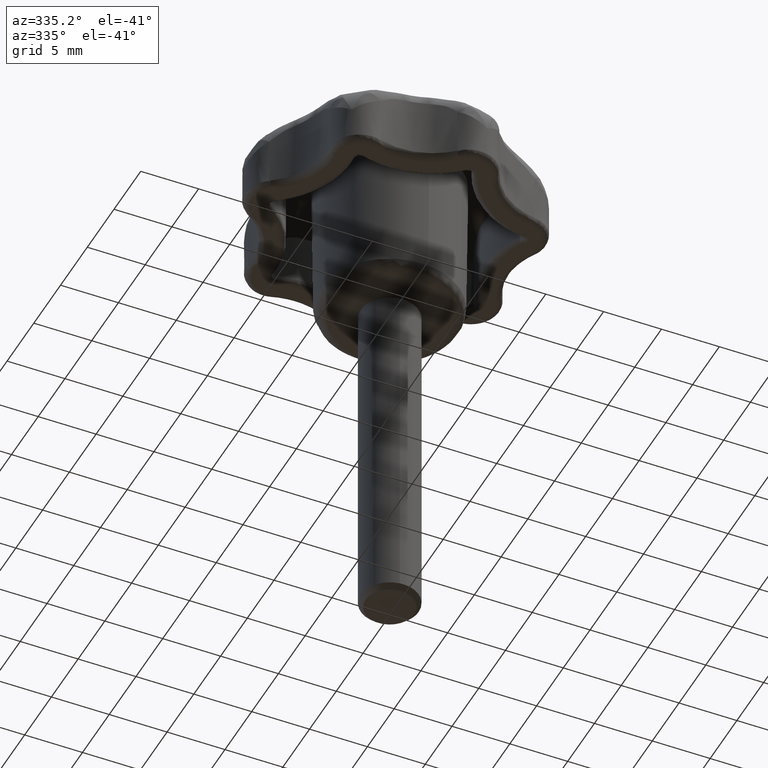
[diagram: clean part render]
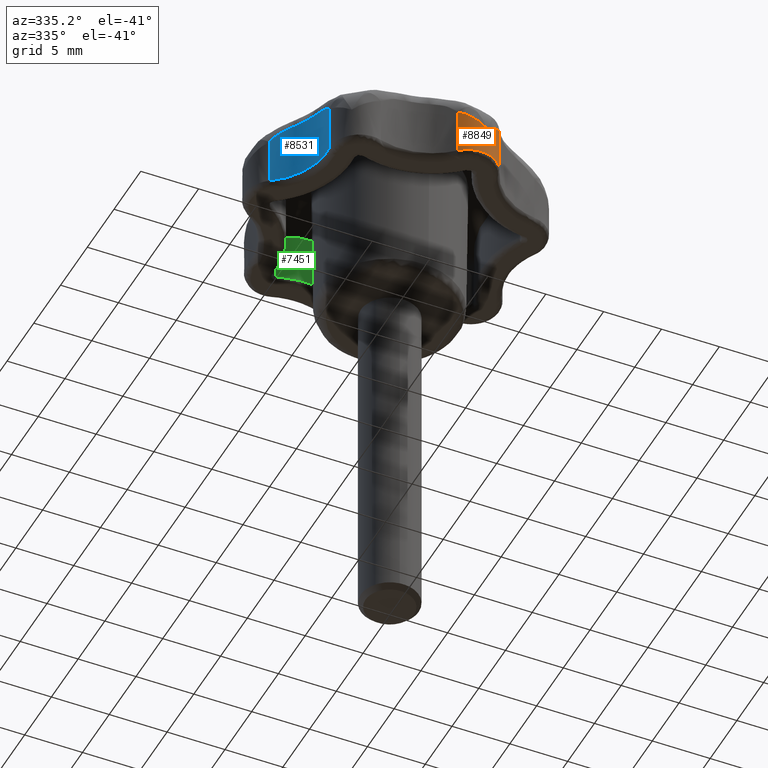
[diagram: same view with three faces highlighted in distinct colors, each labeled with its STEP entity id]
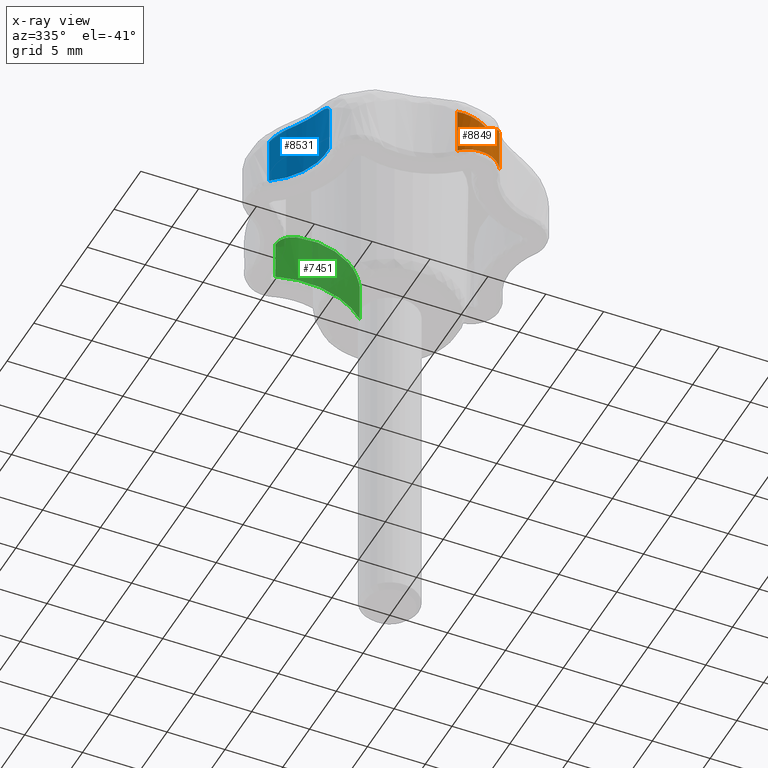
[diagram: x-ray of the same camera — body ghosted, the three highlighted faces saturated]
A machine part, auxiliary view with three faces highlighted in distinct colors.
The next image is the same camera in x-ray (body ghosted, the three faces saturated) — at least one of them is partly hidden behind the body in this view.
Their STEP definitions:

[orange] entity #8849 — the highlighted face is a freeform B-spline surface patch.
#1651=CARTESIAN_POINT('',(4.563284031942840,-10.634380462738219,4.529264595418580));
#1652=VERTEX_POINT('',#1651);
#1750=CARTESIAN_POINT('',(2.781511282431005,-12.186598892089579,3.151512428381570));
#1751=VERTEX_POINT('',#1750);
#1771=CARTESIAN_POINT('',(4.563284031942840,-10.634380462738219,4.529264595418580));
#1772=CARTESIAN_POINT('',(4.487662495242057,-10.834141861445680,4.427469687665122));
#1773=CARTESIAN_POINT('',(4.389238284534717,-11.017943790375920,4.322442562413101));
#1774=CARTESIAN_POINT('',(4.211372162445604,-11.271050720727310,4.158261328847716));
#1775=CARTESIAN_POINT('',(4.146984986091315,-11.351613950743390,4.102422721626397));
#1776=CARTESIAN_POINT('',(4.008043643809743,-11.504898795947531,3.988115386392870));
#1777=CARTESIAN_POINT('',(3.934290066893379,-11.576729229332351,3.930306564796014));
#1778=CARTESIAN_POINT('',(3.778754389860078,-11.710663499669749,3.813183130549426));
#1779=CARTESIAN_POINT('',(3.697390548454497,-11.772392903767731,3.754187098108138));
#1780=CARTESIAN_POINT('',(3.528487160645924,-11.885110083024021,3.635445723277188));
#1781=CARTESIAN_POINT('',(3.440822282983518,-11.936194998966140,3.575610412741043));
#1782=CARTESIAN_POINT('',(3.259401672416639,-12.027603550326351,3.454759368511019));
#1783=CARTESIAN_POINT('',(3.166561096908186,-12.067470620427530,3.394351407173060));
#1784=CARTESIAN_POINT('',(3.024324391976590,-12.118657321448390,3.303503205043001));
#1785=CARTESIAN_POINT('',(2.976414997368678,-12.134280610236280,3.273181078926836));
#1786=CARTESIAN_POINT('',(2.903821417633830,-12.155546019568121,3.227607105706828));
#1787=CARTESIAN_POINT('',(2.879502053502375,-12.162272669500190,3.212400398258992));
#1788=CARTESIAN_POINT('',(2.842840569084235,-12.171817071341280,3.189565933833586));
#1789=CARTESIAN_POINT('',(2.830589954124656,-12.174907530699359,3.181949886368499));
#1790=CARTESIAN_POINT('',(2.806024061818114,-12.180906794816650,3.166715787853680));
#1791=CARTESIAN_POINT('',(2.793621118122193,-12.183834801842950,3.159127716639976));
#1792=CARTESIAN_POINT('',(2.781511282431005,-12.186598892089579,3.151512428381570));
#1793=B_SPLINE_CURVE_WITH_KNOTS('',3,(#1771,#1772,#1773,#1774,#1775,#1776,#1777,#1778,#1779,#1780,#1781,#1782,#1783,#1784,#1785,#1786,#1787,#1788,#1789,#1790,#1791,#1792),.UNSPECIFIED.,.F.,.U.,(4,2,2,2,2,2,2,2,2,2,4),(0.000000049319348,0.250000000000000,0.375000000000001,0.500000000000001,0.625000000000001,0.750000000000001,0.875000000000001,0.937500000000001,0.968750000000001,0.984375000000001,1.0),.UNSPECIFIED.);
#1794=EDGE_CURVE('',#1652,#1751,#1793,.T.);
#5048=CARTESIAN_POINT('',(0.502707521343520,-11.561180944374000,4.529264215869410));
#5049=VERTEX_POINT('',#5048);
#5147=CARTESIAN_POINT('',(2.781511282431005,-12.186598892089579,3.151512428381570));
#5148=CARTESIAN_POINT('',(2.769401406244342,-12.189362792256180,3.159127714912443));
#5149=CARTESIAN_POINT('',(2.756956328154848,-12.192106183303750,3.166715784402129));
#5150=CARTESIAN_POINT('',(2.732220246102599,-12.197359771709349,3.181949879476373));
#5151=CARTESIAN_POINT('',(2.719841925993441,-12.199890705407229,3.189565925227811));
#5152=CARTESIAN_POINT('',(2.682669917071423,-12.207198314781371,3.212400384528243));
#5153=CARTESIAN_POINT('',(2.657840348398665,-12.211689586991520,3.227607088581485));
#5154=CARTESIAN_POINT('',(2.583209093758222,-12.224027282765270,3.273181051676401));
#5155=CARTESIAN_POINT('',(2.533265540545360,-12.230738289723460,3.303503171120864));
#5156=CARTESIAN_POINT('',(2.382905652808730,-12.246334850517460,3.394351353424821));
#5157=CARTESIAN_POINT('',(2.281961533114782,-12.250697874515270,3.454759301797221));
#5158=CARTESIAN_POINT('',(2.078846571306669,-12.247057067655970,3.575610320375380));
#5159=CARTESIAN_POINT('',(1.977698356512245,-12.239067516317730,3.635445616608766));
#5160=CARTESIAN_POINT('',(1.776615555503751,-12.210797290848630,3.754186966587341));
#5161=CARTESIAN_POINT('',(1.676525901815152,-12.190483474552270,3.813182988536426));
#5162=CARTESIAN_POINT('',(1.478281242341466,-12.137297290057040,3.930306397388358));
#5163=CARTESIAN_POINT('',(1.380665526713061,-12.104580796222400,3.988115208959874));
#5164=CARTESIAN_POINT('',(1.188975944639857,-12.026760346693980,4.102422519247340));
#5165=CARTESIAN_POINT('',(1.096010046987085,-11.982111953256389,4.158261115260650));
#5166=CARTESIAN_POINT('',(0.825939241598062,-11.831243753244950,4.322442339974611));
#5167=CARTESIAN_POINT('',(0.657513508086060,-11.708348699172680,4.427469410842620));
#5168=CARTESIAN_POINT('',(0.502707521343520,-11.561180944374000,4.529264215869410));
#5169=B_SPLINE_CURVE_WITH_KNOTS('',3,(#5147,#5148,#5149,#5150,#5151,#5152,#5153,#5154,#5155,#5156,#5157,#5158,#5159,#5160,#5161,#5162,#5163,#5164,#5165,#5166,#5167,#5168),.UNSPECIFIED.,.F.,.U.,(4,2,2,2,2,2,2,2,2,2,4),(0.0,0.015625000000000,0.031250000000000,0.062500000000000,0.125000000000000,0.250000000000000,0.375000000000000,0.500000000000000,0.625000000000000,0.750000000000000,1.0),.UNSPECIFIED.);
#5170=EDGE_CURVE('',#1751,#5049,#5169,.T.);
#6218=CARTESIAN_POINT('',(0.502707521343520,-11.561180944374000,0.499999999999945));
#6219=VERTEX_POINT('',#6218);
#6274=CARTESIAN_POINT('',(4.563284031942840,-10.634380462738219,0.499999999999945));
#6275=VERTEX_POINT('',#6274);
#6289=CARTESIAN_POINT('',(0.502707521343526,-11.561180944373991,0.499999999999945));
#6290=CARTESIAN_POINT('',(1.474407684244280,-12.484936764938311,0.499999999999945));
#6291=CARTESIAN_POINT('',(2.781511522532406,-12.186598737626580,0.499999999999945));
#6292=CARTESIAN_POINT('',(4.088615360820529,-11.888260710314841,0.499999999999945));
#6293=CARTESIAN_POINT('',(4.563284031942840,-10.634380462738219,0.499999999999945));
#6301=(BOUNDED_CURVE()B_SPLINE_CURVE(2,(#6289,#6290,#6291,#6292,#6293),.UNSPECIFIED.,.F.,.U.)B_SPLINE_CURVE_WITH_KNOTS((3,2,3),(0.0,0.500000000000000,1.0),.UNSPECIFIED.)CURVE()GEOMETRIC_REPRESENTATION_ITEM()RATIONAL_B_SPLINE_CURVE((1.0,0.881269650176350,1.0,0.881269650176350,1.0))REPRESENTATION_ITEM(''));
#6302=EDGE_CURVE('',#6219,#6275,#6301,.T.);
#8678=CARTESIAN_POINT('',(4.563284031942840,-10.634380462738219,4.529264595418580));
#8679=CARTESIAN_POINT('',(4.563284031942840,-10.634380462738219,0.499999999999945));
#8680=QUASI_UNIFORM_CURVE('',1,(#8678,#8679),.UNSPECIFIED.,.F.,.U.);
#8681=EDGE_CURVE('',#1652,#6275,#8680,.T.);
#8701=CARTESIAN_POINT('',(0.502707521343520,-11.561180944374000,4.529264215869410));
#8702=CARTESIAN_POINT('',(0.502707521343520,-11.561180944374000,0.499999999999945));
#8703=QUASI_UNIFORM_CURVE('',1,(#8701,#8702),.UNSPECIFIED.,.F.,.U.);
#8704=EDGE_CURVE('',#5049,#6219,#8703,.T.);
#8828=CARTESIAN_POINT('',(0.450216954058112,-11.509791208660600,4.629996210304046));
#8829=CARTESIAN_POINT('',(0.450216954058112,-11.509791208660600,0.396750094742343));
#8830=CARTESIAN_POINT('',(3.438973601824531,-14.523129742153305,4.629996210304046));
#8831=CARTESIAN_POINT('',(3.438973601824531,-14.523129742153305,0.396750094742343));
#8832=CARTESIAN_POINT('',(4.625520892087423,-10.448208768076670,4.629996210304046));
#8833=CARTESIAN_POINT('',(4.625520892087423,-10.448208768076670,0.396750094742343));
#8841=(BOUNDED_SURFACE()B_SPLINE_SURFACE(1,2,((#8828,#8830,#8832),(#8829,#8831,#8833)),.UNSPECIFIED.,.F.,.F.,.U.)B_SPLINE_SURFACE_WITH_KNOTS((2,2),(3,3),(0.0,4.233246115561703),(0.0,5.715470873652224),.UNSPECIFIED.)GEOMETRIC_REPRESENTATION_ITEM()RATIONAL_B_SPLINE_SURFACE(((1.0,0.507538362960704,1.0),(1.0,0.507538362960704,1.0)))REPRESENTATION_ITEM('')SURFACE());
#8842=ORIENTED_EDGE('',*,*,#8681,.F.);
#8843=ORIENTED_EDGE('',*,*,#1794,.T.);
#8844=ORIENTED_EDGE('',*,*,#5170,.T.);
#8845=ORIENTED_EDGE('',*,*,#8704,.T.);
#8846=ORIENTED_EDGE('',*,*,#6302,.T.);
#8847=EDGE_LOOP('',(#8842,#8843,#8844,#8845,#8846));
#8848=FACE_OUTER_BOUND('',#8847,.T.);
#8849=ADVANCED_FACE('',(#8848),#8841,.T.);

[blue] entity #8531 — the highlighted face is a freeform B-spline surface patch.
#4111=CARTESIAN_POINT('',(-8.725462182779161,-7.601311356072420,4.529263871055901));
#4112=VERTEX_POINT('',#4111);
#4253=CARTESIAN_POINT('',(-8.951474601744851,-5.371096049997890,5.602181755613050));
#4254=VERTEX_POINT('',#4253);
#4268=CARTESIAN_POINT('',(-8.725462182779161,-7.601311356072420,4.529263871055901));
#4269=CARTESIAN_POINT('',(-8.720186492970065,-7.540761899240068,4.619782024596765));
#4270=CARTESIAN_POINT('',(-8.715272713313313,-7.473870866547328,4.705347436188728));
#4271=CARTESIAN_POINT('',(-8.707427445707294,-7.326935488594478,4.866273148953326));
#4272=CARTESIAN_POINT('',(-8.704580012860332,-7.248265966715580,4.940108153678395));
#4273=CARTESIAN_POINT('',(-8.702234454138388,-7.081197178393299,5.075064570829729));
#4274=CARTESIAN_POINT('',(-8.702734031953366,-6.992767913931327,5.136203180682148));
#4275=CARTESIAN_POINT('',(-8.708351231676534,-6.806508091407693,5.246311557613843));
#4276=CARTESIAN_POINT('',(-8.713522173111127,-6.708476338913750,5.295245592229700));
#4277=CARTESIAN_POINT('',(-8.737171369000260,-6.408742877561269,5.421975452720245));
#4278=CARTESIAN_POINT('',(-8.763526208252852,-6.203162806103896,5.479793200567625));
#4279=CARTESIAN_POINT('',(-8.811449206007787,-5.942696837232749,5.531338053924045));
#4280=CARTESIAN_POINT('',(-8.821779968769732,-5.890425213585635,5.540597960947637));
#4281=CARTESIAN_POINT('',(-8.843967416929333,-5.785604077691244,5.557290195566966));
#4282=CARTESIAN_POINT('',(-8.855813092918613,-5.733123827777835,5.564707832270620));
#4283=CARTESIAN_POINT('',(-8.893324242001967,-5.576741040652464,5.584465579639790));
#4284=CARTESIAN_POINT('',(-8.921058139461810,-5.473432979607724,5.594407772427796));
#4285=CARTESIAN_POINT('',(-8.951474601744849,-5.371096049997889,5.602181755613040));
#4286=B_SPLINE_CURVE_WITH_KNOTS('',3,(#4268,#4269,#4270,#4271,#4272,#4273,#4274,#4275,#4276,#4277,#4278,#4279,#4280,#4281,#4282,#4283,#4284,#4285),.UNSPECIFIED.,.F.,.U.,(4,2,2,2,2,2,2,2,4),(0.0,0.125000000000000,0.250000000000000,0.374999999999999,0.499999999999999,0.749999999999999,0.812499999999999,0.874999999999999,1.0),.UNSPECIFIED.);
#4287=EDGE_CURVE('',#4112,#4254,#4286,.T.);
#4368=CARTESIAN_POINT('',(-9.780445117304330,-3.649721034734835,5.602181755613019));
#4369=VERTEX_POINT('',#4368);
#4383=CARTESIAN_POINT('',(-8.951474601744851,-5.371096049997890,5.602181755613050));
#4384=CARTESIAN_POINT('',(-9.043367979206481,-5.061918539037209,5.625668299333169));
#4385=CARTESIAN_POINT('',(-9.274314097732043,-4.466274269631843,5.648675114252193));
#4386=CARTESIAN_POINT('',(-9.596014989579468,-3.914335195528505,5.625668299333160));
#4387=CARTESIAN_POINT('',(-9.780445117304330,-3.649721034734835,5.602181755613030));
#4388=B_SPLINE_CURVE_WITH_KNOTS('',3,(#4383,#4384,#4385,#4386,#4387),.UNSPECIFIED.,.F.,.U.,(4,1,4),(0.0,0.500000000000000,1.0),.UNSPECIFIED.);
#4389=EDGE_CURVE('',#4254,#4369,#4388,.T.);
#4493=CARTESIAN_POINT('',(-11.383181271817840,-2.082500872004680,4.529263927214981));
#4494=VERTEX_POINT('',#4493);
#4508=CARTESIAN_POINT('',(-9.780445117304330,-3.649721034734836,5.602181755613013));
#4509=CARTESIAN_POINT('',(-9.903097946770776,-3.473742869244159,5.586562338779121));
#4510=CARTESIAN_POINT('',(-10.034333174570870,-3.305577984679328,5.562571728708846));
#4511=CARTESIAN_POINT('',(-10.207819297016110,-3.105857850703441,5.511260388311471));
#4512=CARTESIAN_POINT('',(-10.242986766053480,-3.066439794179666,5.499912214963851));
#4513=CARTESIAN_POINT('',(-10.314220963046600,-2.988680201061531,5.474686178049922));
#4514=CARTESIAN_POINT('',(-10.350388805969180,-2.950234677652530,5.460765258175880));
#4515=CARTESIAN_POINT('',(-10.459451557572370,-2.837295040867160,5.414911378589594));
#4516=CARTESIAN_POINT('',(-10.532322388489639,-2.765781351700397,5.379154541773240));
#4517=CARTESIAN_POINT('',(-10.677230470793880,-2.630278172758091,5.295494332371248));
#4518=CARTESIAN_POINT('',(-10.749269949720150,-2.566286743763068,5.247597255073287));
#4519=CARTESIAN_POINT('',(-10.855785119187290,-2.475883352622843,5.165282464230796));
#4520=CARTESIAN_POINT('',(-10.891032099128051,-2.446679366675434,5.136098394931991));
#4521=CARTESIAN_POINT('',(-10.960842151158831,-2.390124583891915,5.073986053769036));
#4522=CARTESIAN_POINT('',(-10.995296525791430,-2.362867650371571,5.041129455735953));
#4523=CARTESIAN_POINT('',(-11.162254881599161,-2.233548279149370,4.870399407627998));
#4524=CARTESIAN_POINT('',(-11.281435061177220,-2.150079925725297,4.711173591990649));
#4525=CARTESIAN_POINT('',(-11.383181271817840,-2.082500872004680,4.529263927214981));
#4526=B_SPLINE_CURVE_WITH_KNOTS('',3,(#4508,#4509,#4510,#4511,#4512,#4513,#4514,#4515,#4516,#4517,#4518,#4519,#4520,#4521,#4522,#4523,#4524,#4525),.UNSPECIFIED.,.F.,.U.,(4,2,2,2,2,2,2,2,4),(0.0,0.250000000000001,0.312500000000001,0.375000000000001,0.500000000000002,0.625000000000003,0.687500000000002,0.750000000000002,1.0),.UNSPECIFIED.);
#4527=EDGE_CURVE('',#4369,#4494,#4526,.T.);
#6346=CARTESIAN_POINT('',(-8.725462182779161,-7.601311356072420,0.499999999999945));
#6347=VERTEX_POINT('',#6346);
#6480=CARTESIAN_POINT('',(-11.383181271817840,-2.082500872004680,0.499999999999945));
#6481=VERTEX_POINT('',#6480);
#6511=CARTESIAN_POINT('',(-11.383181271817840,-2.082500872004678,0.499999999999945));
#6512=CARTESIAN_POINT('',(-8.416303727689611,-4.053078210214469,0.499999999999945));
#6513=CARTESIAN_POINT('',(-8.725462182779163,-7.601311356072417,0.499999999999945));
#6521=(BOUNDED_CURVE()B_SPLINE_CURVE(2,(#6511,#6512,#6513),.UNSPECIFIED.,.F.,.U.)CURVE()GEOMETRIC_REPRESENTATION_ITEM()QUASI_UNIFORM_CURVE()RATIONAL_B_SPLINE_CURVE((1.0,0.859906568264119,1.0))REPRESENTATION_ITEM(''));
#6522=EDGE_CURVE('',#6481,#6347,#6521,.T.);
#8501=CARTESIAN_POINT('',(-8.741143646059799,-7.757601769947542,5.765600999462498));
#8502=CARTESIAN_POINT('',(-8.741143646059799,-7.757601769947542,0.368359975013381));
#8503=CARTESIAN_POINT('',(-8.303106002205485,-3.900798261717808,5.765600999462498));
#8504=CARTESIAN_POINT('',(-8.303106002205485,-3.900798261717808,0.368359975013381));
#8505=CARTESIAN_POINT('',(-11.641423914864422,-1.920282219736042,5.765600999462498));
#8506=CARTESIAN_POINT('',(-11.641423914864422,-1.920282219736042,0.368359975013381));
#8514=(BOUNDED_SURFACE()B_SPLINE_SURFACE(1,2,((#8501,#8503,#8505),(#8502,#8504,#8506)),.UNSPECIFIED.,.F.,.F.,.U.)B_SPLINE_SURFACE_WITH_KNOTS((2,2),(3,3),(0.0,5.397241024449117),(0.0,7.086385729117951),.UNSPECIFIED.)GEOMETRIC_REPRESENTATION_ITEM()RATIONAL_B_SPLINE_SURFACE(((1.0,0.839186427180805,0.998971580502615),(1.0,0.839186427180805,0.998971580502615)))REPRESENTATION_ITEM('')SURFACE());
#8515=CARTESIAN_POINT('',(-8.725462182779161,-7.601311356072420,4.529263871055901));
#8516=CARTESIAN_POINT('',(-8.725462182779161,-7.601311356072420,0.499999999999945));
#8517=QUASI_UNIFORM_CURVE('',1,(#8515,#8516),.UNSPECIFIED.,.F.,.U.);
#8518=EDGE_CURVE('',#4112,#6347,#8517,.T.);
#8519=ORIENTED_EDGE('',*,*,#8518,.F.);
#8520=ORIENTED_EDGE('',*,*,#4287,.T.);
#8521=ORIENTED_EDGE('',*,*,#4389,.T.);
#8522=ORIENTED_EDGE('',*,*,#4527,.T.);
#8523=CARTESIAN_POINT('',(-11.383181271817840,-2.082500872004680,4.529263927214981));
#8524=CARTESIAN_POINT('',(-11.383181271817840,-2.082500872004680,0.499999999999945));
#8525=QUASI_UNIFORM_CURVE('',1,(#8523,#8524),.UNSPECIFIED.,.F.,.U.);
#8526=EDGE_CURVE('',#4494,#6481,#8525,.T.);
#8527=ORIENTED_EDGE('',*,*,#8526,.T.);
#8528=ORIENTED_EDGE('',*,*,#6522,.T.);
#8529=EDGE_LOOP('',(#8519,#8520,#8521,#8522,#8527,#8528));
#8530=FACE_OUTER_BOUND('',#8529,.T.);
#8531=ADVANCED_FACE('',(#8530),#8514,.F.);

[green] entity #7451 — the highlighted face is a freeform B-spline surface patch.
#5792=CARTESIAN_POINT('',(2.018508849993235,9.966707622453241,0.499999999999945));
#5793=VERTEX_POINT('',#5792);
#5924=CARTESIAN_POINT('',(-6.143006151426680,8.103894915550288,0.499999999999945));
#5925=VERTEX_POINT('',#5924);
#5955=CARTESIAN_POINT('',(-6.143006151426680,8.103894915550288,0.499999999999945));
#5956=CARTESIAN_POINT('',(-1.509354030580839,6.612911879171119,0.499999999999945));
#5957=CARTESIAN_POINT('',(2.018508849993228,9.966707622453244,0.499999999999945));
#5965=(BOUNDED_CURVE()B_SPLINE_CURVE(2,(#5955,#5956,#5957),.UNSPECIFIED.,.F.,.U.)CURVE()GEOMETRIC_REPRESENTATION_ITEM()QUASI_UNIFORM_CURVE()RATIONAL_B_SPLINE_CURVE((1.0,0.859906579978315,1.0))REPRESENTATION_ITEM(''));
#5966=EDGE_CURVE('',#5925,#5793,#5965,.T.);
#7349=CARTESIAN_POINT('',(-6.466728700466110,8.215571489298531,5.172138243882327));
#7350=CARTESIAN_POINT('',(-6.466728700466110,8.215571489298531,0.383196543902885));
#7351=CARTESIAN_POINT('',(-1.404181589850400,6.349937741958245,5.172138243882327));
#7352=CARTESIAN_POINT('',(-1.404181589850400,6.349937741958245,0.383196543902885));
#7353=CARTESIAN_POINT('',(2.312620678443342,10.260865179897353,5.172138243882327));
#7354=CARTESIAN_POINT('',(2.312620678443342,10.260865179897353,0.383196543902885));
#7362=(BOUNDED_SURFACE()B_SPLINE_SURFACE(1,2,((#7349,#7351,#7353),(#7350,#7352,#7354)),.UNSPECIFIED.,.F.,.F.,.U.)B_SPLINE_SURFACE_WITH_KNOTS((2,2),(3,3),(0.0,4.788941699979443),(0.0,9.822930199218723),.UNSPECIFIED.)GEOMETRIC_REPRESENTATION_ITEM()RATIONAL_B_SPLINE_SURFACE(((1.0,0.834705779065048,0.998368180791655),(1.0,0.834705779065048,0.998368180791655)))REPRESENTATION_ITEM('')SURFACE());
#7363=CARTESIAN_POINT('',(-6.143006151426680,8.103894915550288,3.825502291535345));
#7364=VERTEX_POINT('',#7363);
#7365=CARTESIAN_POINT('',(-6.143006151426680,8.103894915550288,3.825502291535345));
#7366=CARTESIAN_POINT('',(-6.143006151426680,8.103894915550288,0.499999999999945));
#7367=QUASI_UNIFORM_CURVE('',1,(#7365,#7366),.UNSPECIFIED.,.F.,.U.);
#7368=EDGE_CURVE('',#7364,#5925,#7367,.T.);
#7369=ORIENTED_EDGE('',*,*,#7368,.T.);
#7370=ORIENTED_EDGE('',*,*,#5966,.T.);
#7371=CARTESIAN_POINT('',(2.018508849993235,9.966707622453241,3.825502117391020));
#7372=VERTEX_POINT('',#7371);
#7373=CARTESIAN_POINT('',(2.018508849993235,9.966707622453241,3.825502117391020));
#7374=CARTESIAN_POINT('',(2.018508849993235,9.966707622453241,0.499999999999945));
#7375=QUASI_UNIFORM_CURVE('',1,(#7373,#7374),.UNSPECIFIED.,.F.,.U.);
#7376=EDGE_CURVE('',#7372,#5793,#7375,.T.);
#7377=ORIENTED_EDGE('',*,*,#7376,.F.);
#7378=CARTESIAN_POINT('',(0.523608324318131,8.840320984076611,4.915994343988230));
#7379=VERTEX_POINT('',#7378);
#7380=CARTESIAN_POINT('',(0.523608324318131,8.840320984076611,4.915994343988230));
#7381=CARTESIAN_POINT('',(0.572744137858348,8.869200394270823,4.909594166997061));
#7382=CARTESIAN_POINT('',(0.621443634072391,8.898509601877285,4.902147877438538));
#7383=CARTESIAN_POINT('',(0.753281848511967,8.979723694371273,4.878515375068120));
#7384=CARTESIAN_POINT('',(0.835317411686773,9.032342100326648,4.859937096984597));
#7385=CARTESIAN_POINT('',(0.995633502897644,9.139159699176487,4.814076978260945));
#7386=CARTESIAN_POINT('',(1.073915476801253,9.193360452915558,4.786803176917934));
#7387=CARTESIAN_POINT('',(1.188322806191223,9.275478121246646,4.737923916344777));
#7388=CARTESIAN_POINT('',(1.225955480379365,9.302985966019033,4.720299401473087));
#7389=CARTESIAN_POINT('',(1.300171916778854,9.358197175908600,4.682087490397255));
#7390=CARTESIAN_POINT('',(1.336888511879011,9.386004383643494,4.661412723640221));
#7391=CARTESIAN_POINT('',(1.444087767472181,9.468578284146629,4.595244138885905));
#7392=CARTESIAN_POINT('',(1.511754213450224,9.522581843602916,4.545619123852850));
#7393=CARTESIAN_POINT('',(1.607378967784315,9.601179971228261,4.461896645109487));
#7394=CARTESIAN_POINT('',(1.638273166845263,9.626976573516886,4.432438287622375));
#7395=CARTESIAN_POINT('',(1.698042801751271,9.677595767730679,4.370189542492349));
#7396=CARTESIAN_POINT('',(1.727006278695251,9.702495302635590,4.337289297110840));
#7397=CARTESIAN_POINT('',(1.810145248102126,9.774916696213989,4.233896827972448));
#7398=CARTESIAN_POINT('',(1.859779906790498,9.819454736158953,4.159820925052637));
#7399=CARTESIAN_POINT('',(1.947751116411739,9.899938070116242,4.000970119151631));
#7400=CARTESIAN_POINT('',(1.986100540251536,9.935898197980997,3.916209972296775));
#7401=CARTESIAN_POINT('',(2.018508849993235,9.966707622453241,3.825502117391020));
#7402=B_SPLINE_CURVE_WITH_KNOTS('',3,(#7380,#7381,#7382,#7383,#7384,#7385,#7386,#7387,#7388,#7389,#7390,#7391,#7392,#7393,#7394,#7395,#7396,#7397,#7398,#7399,#7400,#7401),.UNSPECIFIED.,.F.,.U.,(4,2,2,2,2,2,2,2,2,2,4),(0.763337888035444,0.781250000000001,0.812500000000001,0.843750000000001,0.859375000000001,0.875000000000001,0.906250000000001,0.921875000000001,0.937500000000001,0.968750000000001,1.0),.UNSPECIFIED.);
#7403=EDGE_CURVE('',#7379,#7372,#7402,.T.);
#7404=ORIENTED_EDGE('',*,*,#7403,.F.);
#7405=CARTESIAN_POINT('',(-4.307426596690150,7.737668698834741,4.915994343988230));
#7406=VERTEX_POINT('',#7405);
#7407=CARTESIAN_POINT('',(-4.307426596690150,7.737668698834741,4.915994343988241));
#7408=CARTESIAN_POINT('',(-3.887036647310591,7.702887027438167,4.963355856122190));
#7409=CARTESIAN_POINT('',(-3.468470114709314,7.700722076346305,4.998678873276129));
#7410=CARTESIAN_POINT('',(-2.634890471069970,7.759791271907513,5.046091082516353));
#7411=CARTESIAN_POINT('',(-2.219877031988038,7.821020012765615,5.058181800008495));
#7412=CARTESIAN_POINT('',(-1.703428918898637,7.938889522017502,5.058184115445006));
#7413=CARTESIAN_POINT('',(-1.600368937591191,7.964527779540687,5.057420216261541));
#7414=CARTESIAN_POINT('',(-1.396384435874829,8.019478095544367,5.054389579042676));
#7415=CARTESIAN_POINT('',(-1.295226122651424,8.048841476507263,5.052123576615363));
#7416=CARTESIAN_POINT('',(-0.994214509412719,8.142508987439131,5.043107186338258));
#7417=CARTESIAN_POINT('',(-0.796820896807375,8.212382278488111,5.034141891589195));
#7418=CARTESIAN_POINT('',(-0.214312675492519,8.443900137172376,4.998520588577532));
#7419=CARTESIAN_POINT('',(0.161185987484153,8.627314957257019,4.963193753498893));
#7420=CARTESIAN_POINT('',(0.523608324318131,8.840320984076611,4.915994343988230));
#7421=B_SPLINE_CURVE_WITH_KNOTS('',3,(#7407,#7408,#7409,#7410,#7411,#7412,#7413,#7414,#7415,#7416,#7417,#7418,#7419,#7420),.UNSPECIFIED.,.F.,.U.,(4,2,2,2,2,2,4),(0.0,0.250000000000000,0.500000000000000,0.562500000000000,0.625000000000000,0.750000000000000,1.0),.UNSPECIFIED.);
#7422=EDGE_CURVE('',#7406,#7379,#7421,.T.);
#7423=ORIENTED_EDGE('',*,*,#7422,.F.);
#7424=CARTESIAN_POINT('',(-6.143006151426680,8.103894915550288,3.825502291535345));
#7425=CARTESIAN_POINT('',(-6.100327294929253,8.090162027342391,3.916449023330596));
#7426=CARTESIAN_POINT('',(-6.049979838349249,8.074341721384194,4.001502106893350));
#7427=CARTESIAN_POINT('',(-5.963889493243367,8.048454419893002,4.121111672513444));
#7428=CARTESIAN_POINT('',(-5.933419994278119,8.039463347918636,4.159644700365436));
#7429=CARTESIAN_POINT('',(-5.868982328512014,8.020900473850455,4.234100729229140));
#7430=CARTESIAN_POINT('',(-5.834930894165256,8.011305813934532,4.270103072399166));
#7431=CARTESIAN_POINT('',(-5.728056431703204,7.982006520884769,4.373712594282775));
#7432=CARTESIAN_POINT('',(-5.651843585594131,7.962150456732700,4.435747053767887));
#7433=CARTESIAN_POINT('',(-5.530886410114769,7.932699074147286,4.519646270531610));
#7434=CARTESIAN_POINT('',(-5.489455956505249,7.922935618302273,4.546079568730094));
#7435=CARTESIAN_POINT('',(-5.404461173785706,7.903636849951168,4.596045293155480));
#7436=CARTESIAN_POINT('',(-5.360753784540085,7.894071875173140,4.619646259496019));
#7437=CARTESIAN_POINT('',(-5.138844072855300,7.847475618115522,4.729874624151377));
#7438=CARTESIAN_POINT('',(-4.952645930943877,7.814572141327025,4.792819202678125));
#7439=CARTESIAN_POINT('',(-4.711911792705823,7.781115635021350,4.850115042055394));
#7440=CARTESIAN_POINT('',(-4.663359963570210,7.774804560298863,4.860485227292089));
#7441=CARTESIAN_POINT('',(-4.565500506184152,7.762986508664614,4.879241690162416));
#7442=CARTESIAN_POINT('',(-4.516090279341342,7.757469917612699,4.887641392572789));
#7443=CARTESIAN_POINT('',(-4.413636767795214,7.746977764228523,4.903089082074075));
#7444=CARTESIAN_POINT('',(-4.360550781634737,7.742064014559351,4.910009759651557));
#7445=CARTESIAN_POINT('',(-4.307426596690150,7.737668698834741,4.915994343988230));
#7446=B_SPLINE_CURVE_WITH_KNOTS('',3,(#7424,#7425,#7426,#7427,#7428,#7429,#7430,#7431,#7432,#7433,#7434,#7435,#7436,#7437,#7438,#7439,#7440,#7441,#7442,#7443,#7444,#7445),.UNSPECIFIED.,.F.,.U.,(4,2,2,2,2,2,2,2,2,2,4),(0.0,0.031250000000000,0.046875000000001,0.062500000000001,0.093750000000001,0.109375000000002,0.125000000000002,0.187500000000002,0.203125000000003,0.218750000000003,0.235523746444627),.UNSPECIFIED.);
#7447=EDGE_CURVE('',#7364,#7406,#7446,.T.);
#7448=ORIENTED_EDGE('',*,*,#7447,.F.);
#7449=EDGE_LOOP('',(#7369,#7370,#7377,#7404,#7423,#7448));
#7450=FACE_OUTER_BOUND('',#7449,.T.);
#7451=ADVANCED_FACE('',(#7450),#7362,.T.);